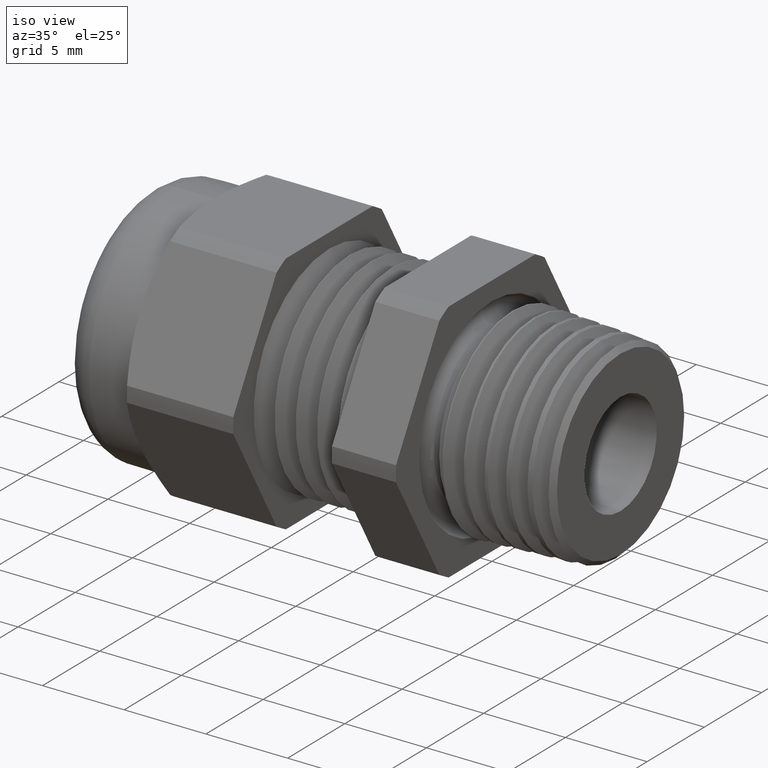
[diagram: clean part render]
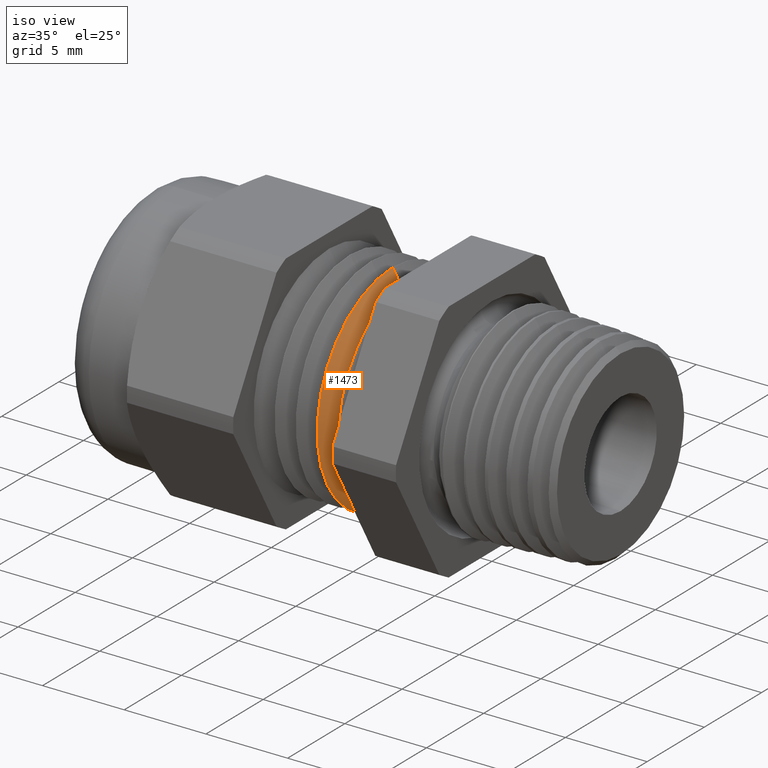
[diagram: same view with one face highlighted and labeled with its STEP entity id]
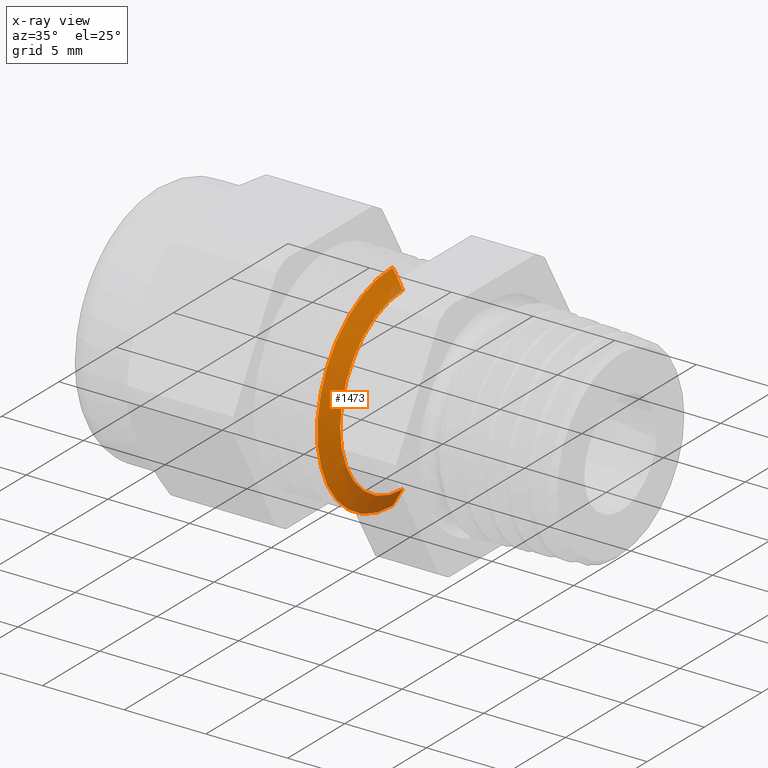
[diagram: x-ray of the same camera — body ghosted, the highlighted face saturated]
A machine part, iso view. The second image highlights one B-rep face of the part: STEP entity #1473.
The next image is the same camera in x-ray: the body ghosted, the highlighted face saturated — about 18% of this face is hidden behind the body in this view.
In plain terms, the highlighted conical surface has half-angle 60 deg.
Its self-contained STEP definition (entity closure, byte-faithful):
#1 = DIRECTION ( 'NONE',  ( 0.0000000000000000000, 0.0000000000000000000, 1.000000000000000000 ) ) ;
#2 = DIRECTION ( 'NONE',  ( -1.000000000000000000, 0.0000000000000000000, 0.0000000000000000000 ) ) ;
#3 = CARTESIAN_POINT ( 'NONE',  ( -0.2390833333333335100, 0.0000000000000000000, 0.0000000000000000000 ) ) ;
#4 = AXIS2_PLACEMENT_3D ( 'NONE', #3, #2, #1 ) ;
#6 = CONICAL_SURFACE ( 'NONE', #4, 0.2596999999999999900, 1.047197551196602300 ) ;
#7 = FACE_OUTER_BOUND ( 'NONE', #1474, .T. ) ;
#51 = DIRECTION ( 'NONE',  ( 0.0000000000000000000, 0.0000000000000000000, -1.000000000000000000 ) ) ;
#52 = DIRECTION ( 'NONE',  ( 1.000000000000000000, 0.0000000000000000000, 0.0000000000000000000 ) ) ;
#53 = AXIS2_PLACEMENT_3D ( 'NONE', #59, #52, #51 ) ;
#54 = CIRCLE ( 'NONE', #53, 0.2163987499999999500 ) ;
#59 = CARTESIAN_POINT ( 'NONE',  ( -0.2140833449895865000, 0.0000000000000000000, 0.0000000000000000000 ) ) ;
#270 = CARTESIAN_POINT ( 'NONE',  ( -0.2140833449895865000, 0.0000000000000000000, -0.2163987499999999500 ) ) ;
#271 = CARTESIAN_POINT ( 'NONE',  ( -0.2390833333333335100, 3.180407737385675900E-017, -0.2596999999999999900 ) ) ;
#311 = CARTESIAN_POINT ( 'NONE',  ( -0.2140833449895865000, 2.915264051327779200E-017, 0.2163987499999999500 ) ) ;
#353 = DIRECTION ( 'NONE',  ( -0.4999999999999960000, 1.060575238724909600E-016, -0.8660254037844409300 ) ) ;
#354 = VECTOR ( 'NONE', #353, 39.37007874015748100 ) ;
#355 = CARTESIAN_POINT ( 'NONE',  ( -0.2390833333333335100, 3.180407737385675900E-017, -0.2596999999999999900 ) ) ;
#361 = LINE ( 'NONE', #355, #354 ) ;
#511 = EDGE_CURVE ( 'NONE', #781, #1629, #1735, .T. ) ;
#775 = EDGE_CURVE ( 'NONE', #1638, #781, #2285, .T. ) ;
#781 = VERTEX_POINT ( 'NONE', #2270 ) ;
#1473 = ADVANCED_FACE ( 'NONE', ( #7 ), #6, .T. ) ;
#1474 = EDGE_LOOP ( 'NONE', ( #1543, #1544, #1542, #1540 ) ) ;
#1482 = EDGE_CURVE ( 'NONE', #1638, #1631, #54, .T. ) ;
#1540 = ORIENTED_EDGE ( 'NONE', *, *, #511, .T. ) ;
#1542 = ORIENTED_EDGE ( 'NONE', *, *, #775, .T. ) ;
#1543 = ORIENTED_EDGE ( 'NONE', *, *, #1701, .F. ) ;
#1544 = ORIENTED_EDGE ( 'NONE', *, *, #1482, .F. ) ;
#1629 = VERTEX_POINT ( 'NONE', #271 ) ;
#1631 = VERTEX_POINT ( 'NONE', #270 ) ;
#1638 = VERTEX_POINT ( 'NONE', #311 ) ;
#1701 = EDGE_CURVE ( 'NONE', #1631, #1629, #361, .T. ) ;
#1733 = CARTESIAN_POINT ( 'NONE',  ( -0.2390833333333335100, 0.0000000000000000000, 0.0000000000000000000 ) ) ;
#1734 = AXIS2_PLACEMENT_3D ( 'NONE', #1733, #1794, #1793 ) ;
#1735 = CIRCLE ( 'NONE', #1734, 0.2596999999999999900 ) ;
#1793 = DIRECTION ( 'NONE',  ( 0.0000000000000000000, 0.0000000000000000000, -1.000000000000000000 ) ) ;
#1794 = DIRECTION ( 'NONE',  ( 1.000000000000000000, 0.0000000000000000000, 0.0000000000000000000 ) ) ;
#2270 = CARTESIAN_POINT ( 'NONE',  ( -0.2390833333333335100, 0.0000000000000000000, 0.2596999999999999900 ) ) ;
#2282 = DIRECTION ( 'NONE',  ( -0.4999999999999960000, 0.0000000000000000000, 0.8660254037844409300 ) ) ;
#2283 = VECTOR ( 'NONE', #2282, 39.37007874015748100 ) ;
#2284 = CARTESIAN_POINT ( 'NONE',  ( -0.2390833333333335100, 0.0000000000000000000, 0.2596999999999999900 ) ) ;
#2285 = LINE ( 'NONE', #2284, #2283 ) ;